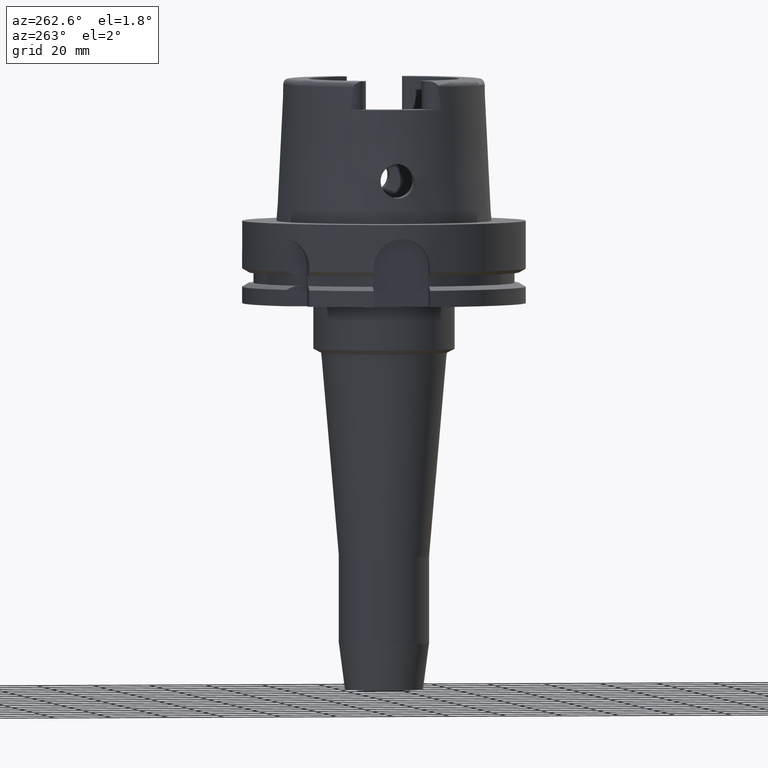
[diagram: clean part render]
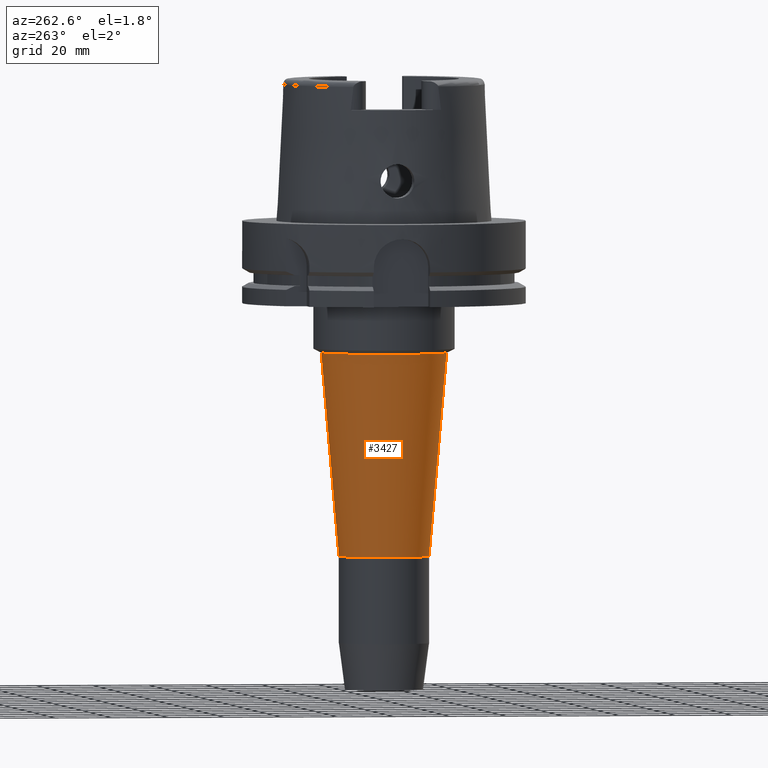
[diagram: same view with one face highlighted and labeled with its STEP entity id]
A machine part, auxiliary view. The second image highlights one B-rep face of the part: STEP entity #3427.
In plain terms, the highlighted conical surface has half-angle 4.994 deg.
Its self-contained STEP definition (entity closure, byte-faithful):
#1135=DIRECTION('',(0.E0,-8.705142100513E-2,-9.962038195575E-1));
#1136=VECTOR('',#1135,7.194555201265E1);
#1137=CARTESIAN_POINT('',(0.E0,2.226296253770E1,-4.641456628482E1));
#1138=LINE('',#1137,#1136);
#1158=DIRECTION('',(0.E0,8.705142100513E-2,-9.962038195575E-1));
#1159=VECTOR('',#1158,7.194555201265E1);
#1160=CARTESIAN_POINT('',(0.E0,-2.226296253770E1,-4.641456628482E1));
#1161=LINE('',#1160,#1159);
#1165=CARTESIAN_POINT('',(0.E0,0.E0,-1.18087E2));
#1166=DIRECTION('',(0.E0,0.E0,-1.E0));
#1167=DIRECTION('',(0.E0,-1.E0,0.E0));
#1168=AXIS2_PLACEMENT_3D('',#1165,#1166,#1167);
#1188=CARTESIAN_POINT('',(0.E0,0.E0,-4.641456628482E1));
#1189=DIRECTION('',(0.E0,0.E0,-1.E0));
#1190=DIRECTION('',(0.E0,-1.E0,0.E0));
#1191=AXIS2_PLACEMENT_3D('',#1188,#1189,#1190);
#2413=CARTESIAN_POINT('',(0.E0,1.6E1,-1.18087E2));
#2414=VERTEX_POINT('',#2413);
#2415=CARTESIAN_POINT('',(0.E0,-1.6E1,-1.18087E2));
#2416=VERTEX_POINT('',#2415);
#2417=CARTESIAN_POINT('',(0.E0,2.226296253770E1,-4.641456628482E1));
#2418=VERTEX_POINT('',#2417);
#2419=CARTESIAN_POINT('',(0.E0,-2.226296253770E1,-4.641456628482E1));
#2420=VERTEX_POINT('',#2419);
#3415=CARTESIAN_POINT('',(0.E0,0.E0,-8.225078314241E1));
#3416=DIRECTION('',(0.E0,0.E0,1.E0));
#3417=DIRECTION('',(0.E0,1.E0,0.E0));
#3418=AXIS2_PLACEMENT_3D('',#3415,#3416,#3417);
#3419=CONICAL_SURFACE('',#3418,1.913148126885E1,4.994E0);
#3420=ORIENTED_EDGE('',*,*,#3405,.F.);
#3422=ORIENTED_EDGE('',*,*,#3421,.F.);
#3423=ORIENTED_EDGE('',*,*,#3408,.T.);
#3424=ORIENTED_EDGE('',*,*,#3379,.T.);
#3425=EDGE_LOOP('',(#3420,#3422,#3423,#3424));
#3426=FACE_OUTER_BOUND('',#3425,.F.);
#1169=CIRCLE('',#1168,1.6E1);
#1192=CIRCLE('',#1191,2.226296253770E1);
#3379=EDGE_CURVE('',#2416,#2414,#1169,.T.);
#3405=EDGE_CURVE('',#2418,#2414,#1138,.T.);
#3408=EDGE_CURVE('',#2420,#2416,#1161,.T.);
#3421=EDGE_CURVE('',#2420,#2418,#1192,.T.);
#3427=ADVANCED_FACE('',(#3426),#3419,.T.);